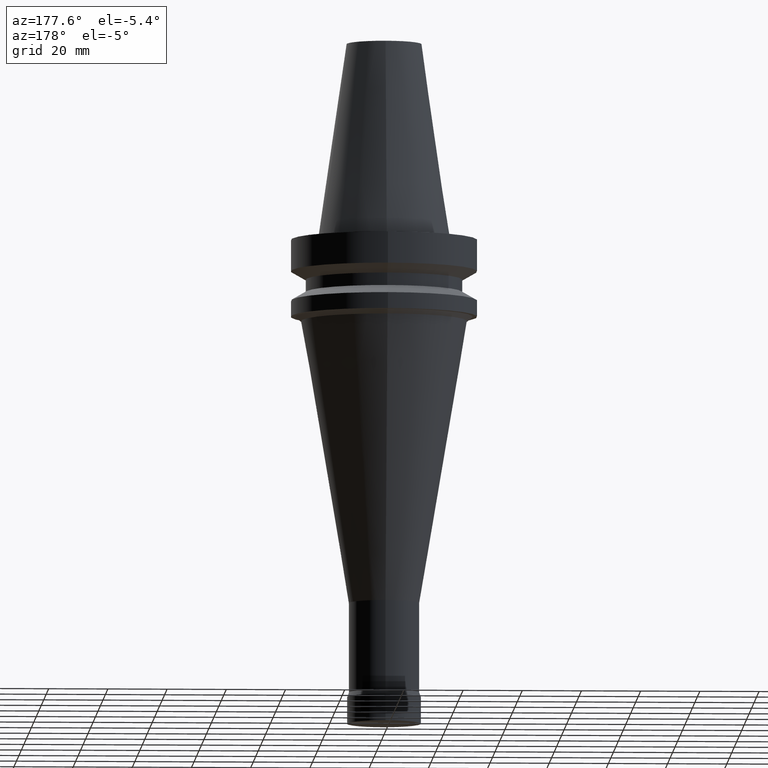
[diagram: clean part render]
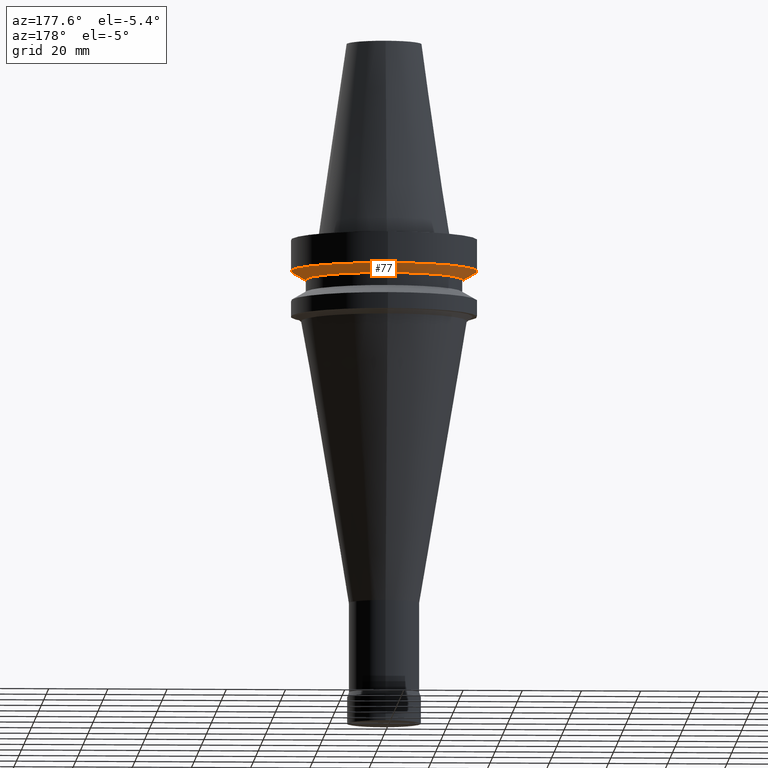
[diagram: same view with one face highlighted and labeled with its STEP entity id]
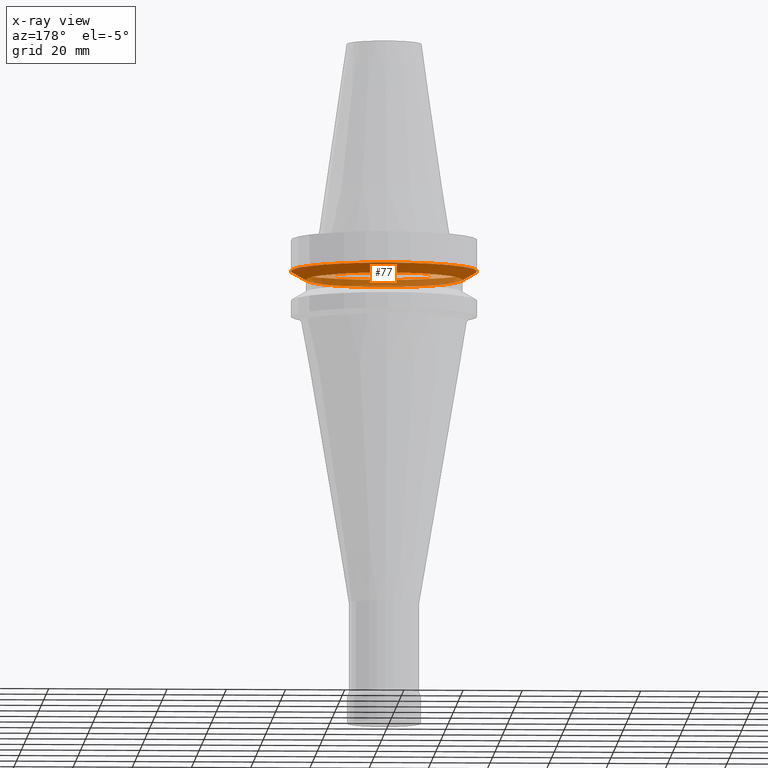
[diagram: x-ray of the same camera — body ghosted, the highlighted face saturated]
A machine part, auxiliary view. The second image highlights one B-rep face of the part: STEP entity #77.
The next image is the same camera in x-ray: the body ghosted, the highlighted face saturated — about 34% of this face is hidden behind the body in this view.
In plain terms, the highlighted conical surface has half-angle 60 deg.
Its self-contained STEP definition (entity closure, byte-faithful):
#77=ADVANCED_FACE('',(#98,#99),#100,.T.);
#98=FACE_BOUND('',#144,.T.);
#99=FACE_BOUND('',#145,.T.);
#100=CONICAL_SURFACE('',#146,29.0,1.04719755058882);
#144=EDGE_LOOP('',(#194));
#145=EDGE_LOOP('',(#195));
#146=AXIS2_PLACEMENT_3D('',#196,#197,#198);
#194=ORIENTED_EDGE('',*,*,#265,.F.);
#195=ORIENTED_EDGE('',*,*,#264,.T.);
#196=CARTESIAN_POINT('',(7.9867641352326E-016,1.59735282704652E-015,-13.043375675));
#197=DIRECTION('',(-6.12323399573677E-017,-1.22464679914735E-016,1.0));
#198=DIRECTION('',(-1.23259516440783E-032,1.0,1.22464679914735E-016));
#264=EDGE_CURVE('',#281,#281,#282,.T.);
#265=EDGE_CURVE('',#283,#283,#284,.T.);
#281=VERTEX_POINT('',#311);
#282=CIRCLE('',#312,31.5);
#283=VERTEX_POINT('',#313);
#284=CIRCLE('',#314,26.5);
#311=CARTESIAN_POINT('',(7.10295143505464E-016,31.5,-11.6));
#312=AXIS2_PLACEMENT_3D('',#343,#344,#345);
#313=CARTESIAN_POINT('',(8.87057683541055E-016,26.5,-14.48675135));
#314=AXIS2_PLACEMENT_3D('',#346,#347,#348);
#343=CARTESIAN_POINT('',(7.10295143505465E-016,1.42059028701093E-015,-11.6));
#344=DIRECTION('',(6.12323399573677E-017,1.22464679914735E-016,-1.0));
#345=DIRECTION('',(-1.23259516440783E-032,1.0,1.22464679914735E-016));
#346=CARTESIAN_POINT('',(8.87057683541055E-016,1.77411536708211E-015,-14.48675135));
#347=DIRECTION('',(6.12323399573677E-017,1.22464679914735E-016,-1.0));
#348=DIRECTION('',(-1.23259516440783E-032,1.0,1.22464679914735E-016));